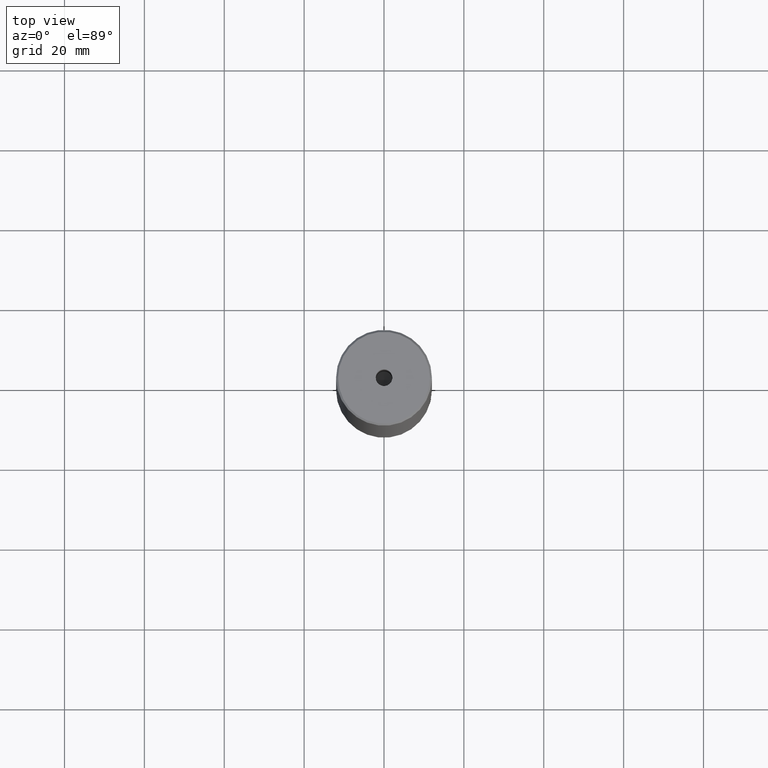
[diagram: clean part render]
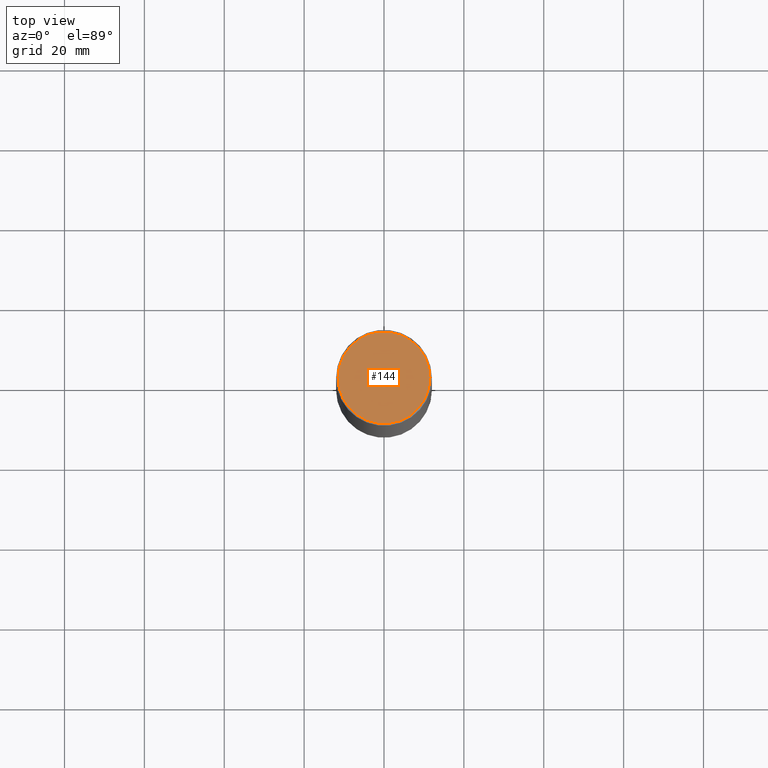
[diagram: same view with one face highlighted and labeled with its STEP entity id]
A machine part, top view. The second image highlights one B-rep face of the part: STEP entity #144.
In plain terms, the highlighted planar face has unit normal (0, -0, 1).
Its self-contained STEP definition (entity closure, byte-faithful):
#7 = EDGE_CURVE ( 'NONE', #221, #550, #141, .T. ) ;
#8 = ORIENTED_EDGE ( 'NONE', *, *, #293, .T. ) ;
#50 = EDGE_LOOP ( 'NONE', ( #8, #408 ) ) ;
#55 = CIRCLE ( 'NONE', #445, 11.50000000000003553 ) ;
#59 = CARTESIAN_POINT ( 'NONE',  ( 2.099999999999998757, 0.000000000000000000, -1.990051048614449116E-16 ) ) ;
#93 = DIRECTION ( 'NONE',  ( 1.000000000000000000, 0.000000000000000000, 0.000000000000000000 ) ) ;
#94 = DIRECTION ( 'NONE',  ( 1.000000000000000000, 0.000000000000000000, 0.000000000000000000 ) ) ;
#99 = CARTESIAN_POINT ( 'NONE',  ( 0.000000000000000000, 0.000000000000000000, 0.000000000000000000 ) ) ;
#101 = EDGE_CURVE ( 'NONE', #330, #490, #541, .T. ) ;
#109 = FACE_BOUND ( 'NONE', #509, .T. ) ;
#114 = AXIS2_PLACEMENT_3D ( 'NONE', #392, #473, #206 ) ;
#126 = CARTESIAN_POINT ( 'NONE',  ( 0.000000000000000000, 0.000000000000000000, -1.990051048614449116E-16 ) ) ;
#141 = CIRCLE ( 'NONE', #214, 2.099999999999998757 ) ;
#144 = ADVANCED_FACE ( 'NONE', ( #109, #294 ), #342, .T. ) ;
#146 = DIRECTION ( 'NONE',  ( 1.000000000000000000, 0.000000000000000000, 0.000000000000000000 ) ) ;
#197 = CARTESIAN_POINT ( 'NONE',  ( 11.50000000000003553, 1.438959988998142132E-15, 0.000000000000000000 ) ) ;
#206 = DIRECTION ( 'NONE',  ( 1.000000000000000000, 0.000000000000000000, 0.000000000000000000 ) ) ;
#214 = AXIS2_PLACEMENT_3D ( 'NONE', #126, #483, #576 ) ;
#221 = VERTEX_POINT ( 'NONE', #59 ) ;
#293 = EDGE_CURVE ( 'NONE', #490, #330, #55, .T. ) ;
#294 = FACE_OUTER_BOUND ( 'NONE', #50, .T. ) ;
#316 = EDGE_CURVE ( 'NONE', #550, #221, #557, .T. ) ;
#322 = AXIS2_PLACEMENT_3D ( 'NONE', #510, #377, #94 ) ;
#330 = VERTEX_POINT ( 'NONE', #197 ) ;
#342 = PLANE ( 'NONE',  #114 ) ;
#359 = AXIS2_PLACEMENT_3D ( 'NONE', #536, #503, #93 ) ;
#377 = DIRECTION ( 'NONE',  ( -0.000000000000000000, -0.000000000000000000, 1.000000000000000000 ) ) ;
#392 = CARTESIAN_POINT ( 'NONE',  ( 0.000000000000000000, 0.000000000000000000, 0.000000000000000000 ) ) ;
#408 = ORIENTED_EDGE ( 'NONE', *, *, #101, .T. ) ;
#421 = ORIENTED_EDGE ( 'NONE', *, *, #7, .F. ) ;
#445 = AXIS2_PLACEMENT_3D ( 'NONE', #99, #499, #146 ) ;
#473 = DIRECTION ( 'NONE',  ( 0.000000000000000000, -0.000000000000000000, 1.000000000000000000 ) ) ;
#483 = DIRECTION ( 'NONE',  ( -0.000000000000000000, -0.000000000000000000, 1.000000000000000000 ) ) ;
#490 = VERTEX_POINT ( 'NONE', #563 ) ;
#499 = DIRECTION ( 'NONE',  ( -0.000000000000000000, -0.000000000000000000, 1.000000000000000000 ) ) ;
#503 = DIRECTION ( 'NONE',  ( -0.000000000000000000, -0.000000000000000000, 1.000000000000000000 ) ) ;
#509 = EDGE_LOOP ( 'NONE', ( #421, #574 ) ) ;
#510 = CARTESIAN_POINT ( 'NONE',  ( 0.000000000000000000, 0.000000000000000000, -1.990051048614449116E-16 ) ) ;
#536 = CARTESIAN_POINT ( 'NONE',  ( 0.000000000000000000, 0.000000000000000000, 0.000000000000000000 ) ) ;
#541 = CIRCLE ( 'NONE', #359, 11.50000000000003553 ) ;
#550 = VERTEX_POINT ( 'NONE', #573 ) ;
#557 = CIRCLE ( 'NONE', #322, 2.099999999999998757 ) ;
#563 = CARTESIAN_POINT ( 'NONE',  ( -11.50000000000003553, 0.000000000000000000, 0.000000000000000000 ) ) ;
#573 = CARTESIAN_POINT ( 'NONE',  ( -2.099999999999998757, 2.571758278209440478E-16, -1.990051048614449116E-16 ) ) ;
#574 = ORIENTED_EDGE ( 'NONE', *, *, #316, .F. ) ;
#576 = DIRECTION ( 'NONE',  ( 1.000000000000000000, 0.000000000000000000, 0.000000000000000000 ) ) ;